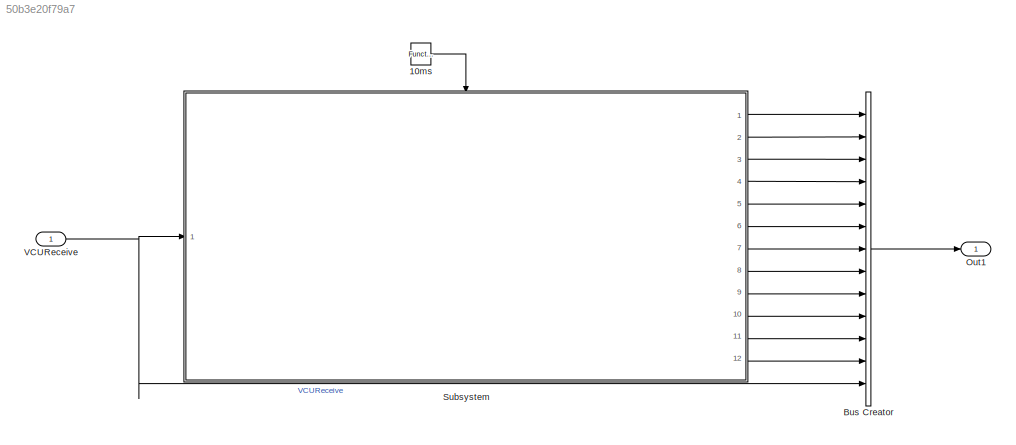
MODEL slx_50b3e20f79a7
KIND model
CONFIG AbsTol = auto
CONFIG EnableMultiTasking = off
CONFIG FixedStep = auto
CONFIG MaxStep = auto
CONFIG MinStep = auto
CONFIG RelTol = 1e-3
CONFIG SampleTimeConstraint = Unconstrained
CONFIG Solver = VariableStepAuto
CONFIG SolverName = VariableStepAuto
CONFIG StartTime = 0.0
CONFIG StopTime = 10.0
BLOCK [Reference] 10ms  REF=simulink/Ports &
Subsystems/Function-Call
Generator
  Ports = [0, 1]
  SourceBlock = simulink/Ports &\nSubsystems/Function-Call\nGenerator
  SourceProductBaseCode = SL
  SourceProductName = Simulink
  SourceType = Function-Call Generator
BLOCK [BusCreator] Bus Creator
  DisplayOption = bar
  InheritFromInputs = on
  Inputs = 13
  Ports = [13, 1]
BLOCK [Outport] Out1
  IconDisplay = Port number
  VectorParamsAs1DForOutWhenUnconnected = off
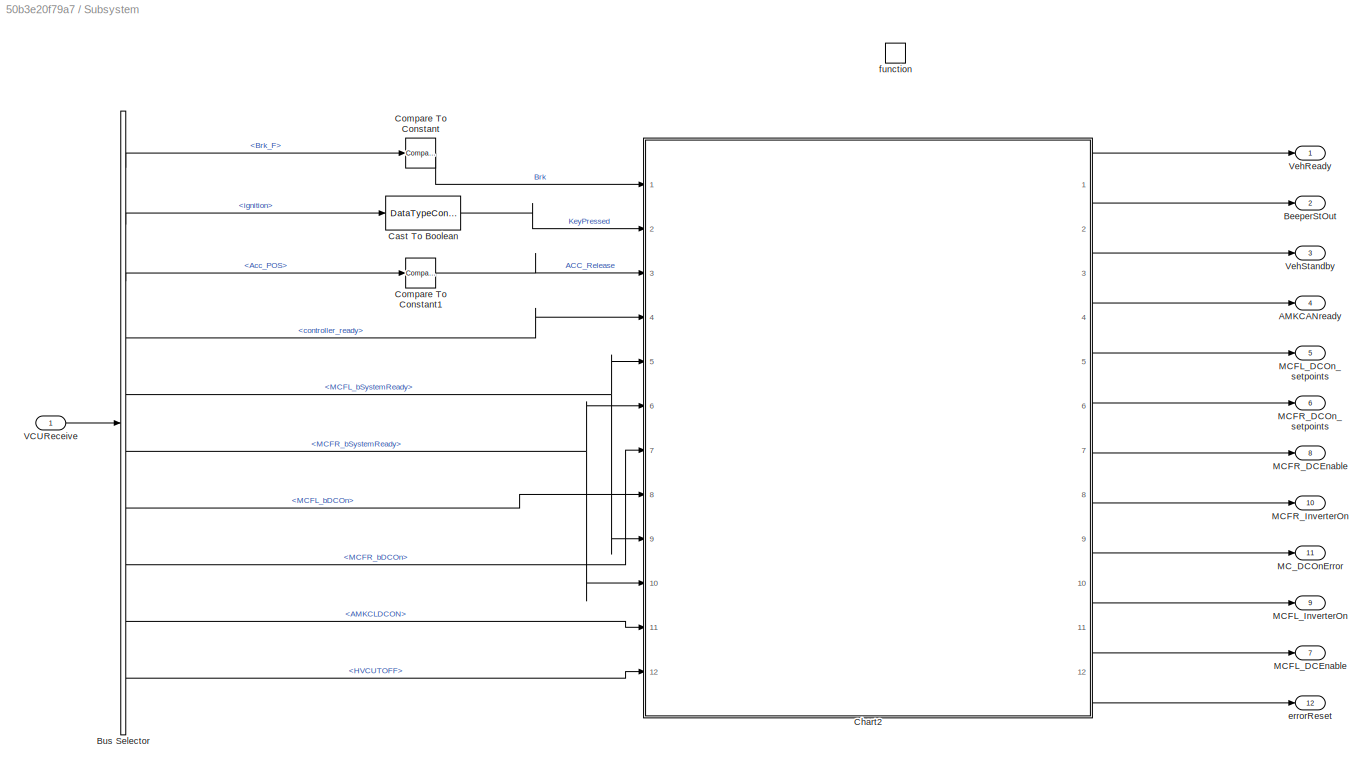
BLOCK [SubSystem] Subsystem
  Ports = [1, 12, 0, 1]
  RequestExecContextInheritance = off
BLOCK [Outport] Subsystem/AMKCANready
  IconDisplay = Port number
  Port = 4
BLOCK [Outport] Subsystem/BeeperStOut
  IconDisplay = Port number
  Port = 2
BLOCK [BusSelector] Subsystem/Bus Selector
  OutputAsBus = off
  OutputSignals = signal1.AccBrkPedal_Processing.Brk_F,signal1.BUS.KEY.ignition,signal1.AccBrkPedal_Processing.Acc_POS,signal1.BUS.EMRAXMCU_Receive.MCU_state.controller_ready,signal1.BUS.AMKMCUtoVCU_BUS.FLAMKMCUtoVCU1.MCFL_bSystemReady,signal1.BUS.AMKMCUtoVCU_BUS.FRAMKMCUtoVCU1.MCFR_bSystemReady,signal1.BUS.AMKMCUtoVCU_BUS.FLAMKMCUtoVCU1.MCFL_bDCOn,signal1.BUS.AMKMCUtoVCU_BUS.FRAMKMCUtoVCU1.MCFR_bDCOn,signal1.BUS.K...<+37ch>
  Ports = [1, 10]
BLOCK [DataTypeConversion] Subsystem/Cast To Boolean
  OutDataTypeStr = boolean
  RndMeth = Floor
  SaturateOnIntegerOverflow = off
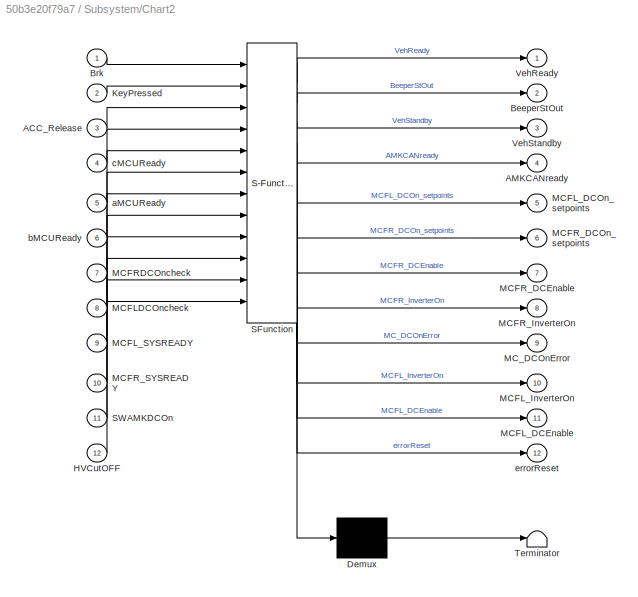
BLOCK [SubSystem] Subsystem/Chart2
  ErrorFcn = Stateflow.Translate.translate
  PermitHierarchicalResolution = ExplicitOnly
  Ports = [12, 12]
  RequestExecContextInheritance = off
  SFBlockType = Chart
  TreatAsAtomicUnit = on
BLOCK [Demux] Subsystem/Chart2/ Demux 
  Outputs = 1
  Ports = [1, 1]
BLOCK [S-Function] Subsystem/Chart2/ SFunction 
  EnableBusSupport = on
  FunctionName = sf_sfun
  PortCounts = [12 13]
  Ports = [12, 13]
  SFcnIsStateOwnerBlock = off
  SFunctionDeploymentMode = off
  Tag = Stateflow S-Function 1
BLOCK [Terminator] Subsystem/Chart2/ Terminator 
BLOCK [Inport] Subsystem/Chart2/ACC_Release
  IconDisplay = Port number
  Port = 3
BLOCK [Outport] Subsystem/Chart2/AMKCANready
  IconDisplay = Port number
  Port = 4
BLOCK [Outport] Subsystem/Chart2/BeeperStOut
  IconDisplay = Port number
  Port = 2
  VectorParamsAs1DForOutWhenUnconnected = off
BLOCK [Inport] Subsystem/Chart2/Brk
  IconDisplay = Port number
BLOCK [Inport] Subsystem/Chart2/HVCutOFF
  IconDisplay = Port number
  Port = 12
BLOCK [Inport] Subsystem/Chart2/KeyPressed
  IconDisplay = Port number
  Port = 2
BLOCK [Inport] Subsystem/Chart2/MCFLDCOncheck
  IconDisplay = Port number
  Port = 8
BLOCK [Outport] Subsystem/Chart2/MCFL_DCEnable
  IconDisplay = Port number
  Port = 11
BLOCK [Outport] Subsystem/Chart2/MCFL_DCOn_setpoints
  IconDisplay = Port number
  Port = 5
BLOCK [Outport] Subsystem/Chart2/MCFL_InverterOn
  IconDisplay = Port number
  Port = 10
BLOCK [Inport] Subsystem/Chart2/MCFL_SYSREADY
  IconDisplay = Port number
  Port = 9
BLOCK [Inport] Subsystem/Chart2/MCFRDCOncheck
  IconDisplay = Port number
  Port = 7
BLOCK [Outport] Subsystem/Chart2/MCFR_DCEnable
  IconDisplay = Port number
  Port = 7
BLOCK [Outport] Subsystem/Chart2/MCFR_DCOn_setpoints
  IconDisplay = Port number
  Port = 6
BLOCK [Outport] Subsystem/Chart2/MCFR_InverterOn
  IconDisplay = Port number
  Port = 8
BLOCK [Inport] Subsystem/Chart2/MCFR_SYSREADY
  IconDisplay = Port number
  Port = 10
BLOCK [Outport] Subsystem/Chart2/MC_DCOnError
  IconDisplay = Port number
  Port = 9
BLOCK [Inport] Subsystem/Chart2/SWAMKDCOn
  IconDisplay = Port number
  Port = 11
BLOCK [Outport] Subsystem/Chart2/VehReady
  IconDisplay = Port number
  VectorParamsAs1DForOutWhenUnconnected = off
BLOCK [Outport] Subsystem/Chart2/VehStandby
  IconDisplay = Port number
  Port = 3
  VectorParamsAs1DForOutWhenUnconnected = off
BLOCK [Inport] Subsystem/Chart2/aMCUReady
  IconDisplay = Port number
  Port = 5
BLOCK [Inport] Subsystem/Chart2/bMCUReady
  IconDisplay = Port number
  Port = 6
BLOCK [Inport] Subsystem/Chart2/cMCUReady
  IconDisplay = Port number
  Port = 4
BLOCK [Outport] Subsystem/Chart2/errorReset
  IconDisplay = Port number
  Port = 12
  VectorParamsAs1DForOutWhenUnconnected = off
BLOCK [Reference] Subsystem/Compare To Constant  REF=simulink/Logic and Bit
Operations/Compare
To Constant
  Ports = [1, 1]
  SourceBlock = simulink/Logic and Bit\nOperations/Compare\nTo Constant
  SourceProductBaseCode = SL
  SourceProductName = Simulink
  SourceType = Compare To Constant
BLOCK [Reference] Subsystem/Compare To Constant1  REF=simulink/Logic and Bit
Operations/Compare
To Constant
  Ports = [1, 1]
  SourceBlock = simulink/Logic and Bit\nOperations/Compare\nTo Constant
  SourceProductBaseCode = SL
  SourceProductName = Simulink
  SourceType = Compare To Constant
BLOCK [Outport] Subsystem/MCFL_DCEnable
  IconDisplay = Port number
  Port = 7
BLOCK [Outport] Subsystem/MCFL_DCOn_setpoints
  IconDisplay = Port number
  Port = 5
BLOCK [Outport] Subsystem/MCFL_InverterOn
  IconDisplay = Port number
  Port = 9
BLOCK [Outport] Subsystem/MCFR_DCEnable
  IconDisplay = Port number
  Port = 8
BLOCK [Outport] Subsystem/MCFR_DCOn_setpoints
  IconDisplay = Port number
  Port = 6
BLOCK [Outport] Subsystem/MCFR_InverterOn
  IconDisplay = Port number
  Port = 10
BLOCK [Outport] Subsystem/MC_DCOnError
  IconDisplay = Port number
  Port = 11
BLOCK [Inport] Subsystem/VCUReceive
  IconDisplay = Port number
BLOCK [Outport] Subsystem/VehReady
  IconDisplay = Port number
BLOCK [Outport] Subsystem/VehStandby
  IconDisplay = Port number
  Port = 3
BLOCK [Outport] Subsystem/errorReset
  IconDisplay = Port number
  Port = 12
BLOCK [TriggerPort] Subsystem/function
  Ports = []
  StatesWhenEnabling = held
  TriggerType = function-call
  VariantControl = Variant
BLOCK [Inport] VCUReceive
  IconDisplay = Port number
LINE 10ms:1 -> Subsystem:trigger
LINE Bus Creator:1 -> Out1:1
LINE Subsystem/Bus Selector:1 -> Subsystem/Compare To Constant:1
LINE Subsystem/Bus Selector:10 -> Subsystem/Chart2:12
LINE Subsystem/Bus Selector:2 -> Subsystem/Cast To Boolean:1
LINE Subsystem/Bus Selector:3 -> Subsystem/Compare To Constant1:1
LINE Subsystem/Bus Selector:4 -> Subsystem/Chart2:4
NET Subsystem/Bus Selector:5 -> Subsystem/Chart2:5, Subsystem/Chart2:9
NET Subsystem/Bus Selector:6 -> Subsystem/Chart2:10, Subsystem/Chart2:6
LINE Subsystem/Bus Selector:7 -> Subsystem/Chart2:8
LINE Subsystem/Bus Selector:8 -> Subsystem/Chart2:7
LINE Subsystem/Bus Selector:9 -> Subsystem/Chart2:11
LINE Subsystem/Cast To Boolean:1 -> Subsystem/Chart2:2
LINE Subsystem/Chart2:1 -> Subsystem/VehReady:1
LINE Subsystem/Chart2:10 -> Subsystem/MCFL_InverterOn:1
LINE Subsystem/Chart2:11 -> Subsystem/MCFL_DCEnable:1
LINE Subsystem/Chart2:12 -> Subsystem/errorReset:1
LINE Subsystem/Chart2:2 -> Subsystem/BeeperStOut:1
LINE Subsystem/Chart2:3 -> Subsystem/VehStandby:1
LINE Subsystem/Chart2:4 -> Subsystem/AMKCANready:1
LINE Subsystem/Chart2:5 -> Subsystem/MCFL_DCOn_setpoints:1
LINE Subsystem/Chart2:6 -> Subsystem/MCFR_DCOn_setpoints:1
LINE Subsystem/Chart2:7 -> Subsystem/MCFR_DCEnable:1
LINE Subsystem/Chart2:8 -> Subsystem/MCFR_InverterOn:1
LINE Subsystem/Chart2:9 -> Subsystem/MC_DCOnError:1
LINE Subsystem/Compare To Constant1:1 -> Subsystem/Chart2:3
LINE Subsystem/Compare To Constant:1 -> Subsystem/Chart2:1
LINE Subsystem/VCUReceive:1 -> Subsystem/Bus Selector:1
LINE Subsystem:1 -> Bus Creator:1
LINE Subsystem:10 -> Bus Creator:10
LINE Subsystem:11 -> Bus Creator:11
LINE Subsystem:12 -> Bus Creator:12
LINE Subsystem:2 -> Bus Creator:2
LINE Subsystem:3 -> Bus Creator:3
LINE Subsystem:4 -> Bus Creator:4
LINE Subsystem:5 -> Bus Creator:5
LINE Subsystem:6 -> Bus Creator:6
LINE Subsystem:7 -> Bus Creator:7
LINE Subsystem:8 -> Bus Creator:8
LINE Subsystem:9 -> Bus Creator:9
NET VCUReceive:1 -> Bus Creator:13, Subsystem:1
note: NET lines group one-source signal fan-out (src -> all destinations, sorted); 1:1 wires keep LINE
CHART Subsystem/Chart2 states=36 transitions=40
  STATE_LABEL 'VehStat'
  STATE_LABEL 'WaitForEngine\nen:\nsend(AMKCANOFF,AMKCANenable);\nsend(AMKDCOFF,AMKDCon);\nsend(MCDCEnableOFF,MCDCEnable);\nsend(InverterOFF,MC_InverterOn);'
  STATE_LABEL 'Standby'
  STATE_LABEL 'Trans\n'
  STATE_LABEL 'Guard\n'
  STATE_LABEL 'InitStateBack'
  STATE_LABEL 'Ready'
  STATE_LABEL 'Init\nen:\nerrorReset = 1;'
  STATE_LABEL 'MCUReadyFail'
  STATE_LABEL '[aMCUReady&&bMCUReady&&cMCUReady]'
  STATE_LABEL '[KeyPressed&&Brk&&ACC_Release&&cMCUReady&&aMCUReady&&bMCUReady]'
  STATE_LABEL 'after(2.5,sec){send(EbeepOFF,BeeperStat)}'
  STATE_LABEL 'after(0.25,sec){send(EbeepON,BeeperStat)}'
  STATE_LABEL '[~KeyPressed||~Brk||~ACC_Release]'
  STATE_LABEL '[~aMCUReady||~bMCUReady||~cMCUReady]'
  STATE_LABEL '[~cMCUReady||~aMCUReady||~bMCUReady]'
  STATE_LABEL '[after(1,sec)]'
  STATE_LABEL '[~HVCutOFF]'
  STATE_LABEL '[~cMCUReady||~aMCUReady||~bMCUReady]'
  STATE_LABEL 'WaitForEngine\nen:\nsend(AMKCANOFF,AMKCANenable);\nsend(AMKDCOFF,AMKDCon);\nsend(MCDCEnableOFF,MCDCEnable);\nsend(InverterOFF,MC_InverterOn);'
  STATE_LABEL 'Standby'
  STATE_LABEL 'Trans\n'
  STATE_LABEL 'Guard\n'
  STATE_LABEL 'InitStateBack'
  STATE_LABEL 'Ready'
  STATE_LABEL 'Init\nen:\nerrorReset = 1;'
  STATE_LABEL 'MCUReadyFail'
  STATE_LABEL 'BeeperStat'
  STATE_LABEL 'OFF'
  STATE_LABEL 'ON'
  STATE_LABEL 'EbeepON'
  STATE_LABEL 'EbeepOFF'
  STATE_LABEL 'OFF'
  STATE_LABEL 'ON'
  STATE_LABEL 'AMKDCon'
  STATE_LABEL 'OFF'
  STATE_LABEL 'ON'
  STATE_LABEL 'AMKDCON'
  STATE_LABEL 'AMKDCOFF'
  STATE_LABEL 'OFF'
